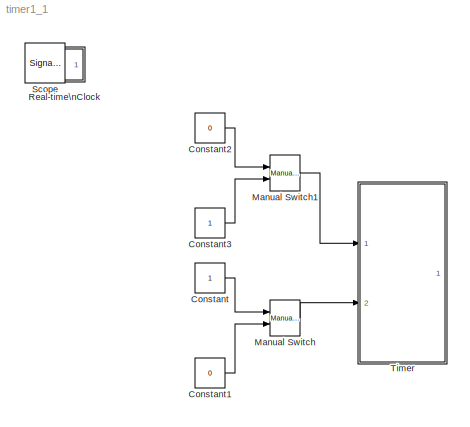
MODEL timer1_1
KIND model
BLOCK [Constant] Constant
  SID = 128
BLOCK [Constant] Constant1
  SID = 129
  Value = 0
BLOCK [Constant] Constant2
  SID = 132
  Value = 0
BLOCK [Constant] Constant3
  SID = 133
BLOCK [Reference] Manual Switch  REF=simulink/Signal\nRouting/Manual Switch
  FunctionWithSeparateData = off
  GeneratePreprocessorConditionals = off
  Ports = [2, 1]
  RTWMemSecDataConstants = Inherit from model
  RTWMemSecDataInternal = Inherit from model
  RTWMemSecDataParameters = Inherit from model
  RTWMemSecFuncExecute = Inherit from model
  RTWMemSecFuncInitTerm = Inherit from model
  SID = 130
  ShowPortLabels = FromPortIcon
  SourceBlock = simulink/Signal\nRouting/Manual Switch
  SourceType = Manual Switch
  SystemSampleTime = -1
  action = 0
  sw = 1
  varsize = off
BLOCK [Reference] Manual Switch1  REF=simulink/Signal\nRouting/Manual Switch
  FunctionWithSeparateData = off
  GeneratePreprocessorConditionals = off
  Ports = [2, 1]
  RTWMemSecDataConstants = Inherit from model
  RTWMemSecDataInternal = Inherit from model
  RTWMemSecDataParameters = Inherit from model
  RTWMemSecFuncExecute = Inherit from model
  RTWMemSecFuncInitTerm = Inherit from model
  SID = 134
  ShowPortLabels = FromPortIcon
  SourceBlock = simulink/Signal\nRouting/Manual Switch
  SourceType = Manual Switch
  SystemSampleTime = -1
  action = 0
  sw = 1
  varsize = off
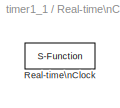
BLOCK [SubSystem] Real-time\nClock
  FunctionWithSeparateData = off
  MaskCallbackString = |
  MaskDescription = Real-time Synchronization Block
  MaskDisplay = plot(0,0,100,100,[40,60,60,54,54,64,69,76,82,77,81,83,83,81,78,74,70,64,57,49,41,35,32,30,30,31,34,40,47,47,40,40],[90,90,85,85,80,79,76,87,80,70,64,57,49,41,33,28,24,22,21,23,25,31,37,46,56,65,73,78,80,85,85,90],[69,53,53],[64,50,73])
  MaskEnableString = on,on
  MaskHelp = This block synchronizes simulation time with the PC real-time clock or UNIX system clock. The first dialog entry is the period at which the clock is checked to insure real-time synchronization. The second dialog entry is the number of seconds that the simulation time must be within real-time before a warning is printed.
  MaskHideContents = off
  MaskIconFrame = on
  MaskIconOpaque = on
  MaskIconRotate = none
  MaskIconUnits = autoscale
  MaskPortRotate = default
  MaskPromptString = Synchronize with real-time every n seconds:|Real-time warning tolerance (seconds):
  MaskStyleString = edit,edit
  MaskToolTipString = on,on
  MaskTunableValueString = on,on
  MaskType = Real-time Clock
  MaskValueString = 0.02|1
  MaskVariables = sample_time=@1;tolerance=@2;
  MaskVisibilityString = on,on
  MinAlgLoopOccurrences = off
  Opaque = off
  Ports = []
  PropExecContextOutsideSubsystem = off
  RTWSystemCode = Auto
  RequestExecContextInheritance = off
  SID = 30
  ShowPortLabels = none
BLOCK [S-Function] Real-time\nClock/Real-time\nClock
  EnableBusSupport = off
  FunctionName = rtclock
  Parameters = sample_time, tolerance
  Ports = []
  SID = 31
BLOCK [SignalViewerScope] Scope
  DataFormat = Array
  IOType = viewer
  MaxDataPoints = 7500
  NumInputPorts = 1
  Ports = []
  RefreshTime = 0.035000
  SID = 154
  ShowDataMarkers = off
  ShowLegends = off
  YMax = 60
  YMin = 0
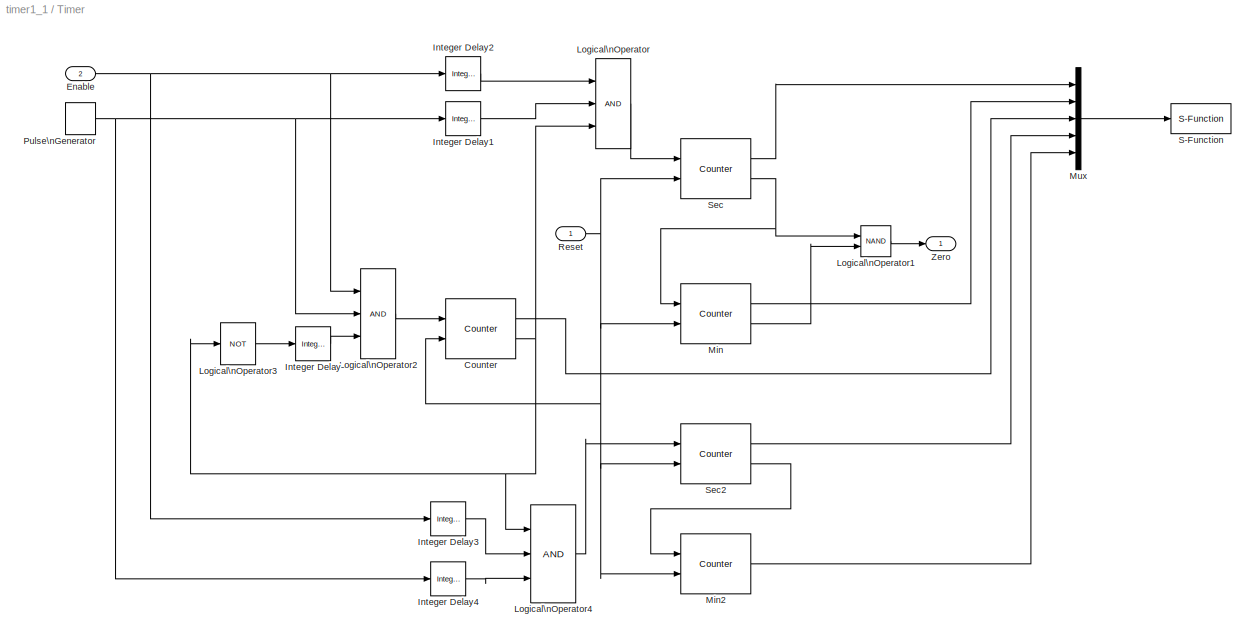
BLOCK [SubSystem] Timer
  FunctionWithSeparateData = off
  MaskHideContents = off
  MinAlgLoopOccurrences = off
  Opaque = off
  Ports = [2, 1]
  PropExecContextOutsideSubsystem = off
  RTWSystemCode = Auto
  RequestExecContextInheritance = off
  SID = 108
BLOCK [Reference] Timer/Counter  REF=dspswit3/Counter
  CntDtype = double
  CountEvent = Rising edge
  CounterSize = User defined
  Direction = Down
  HitDtype = Boolean
  HitValue = 0
  InitialCount = 4
  MaxCount = 4
  Output = Count and Hit
  Ports = [2, 2]
  ResetInput = on
  SID = 184
  SamplesPerFrame = 1
  SourceBlock = dspswit3/Counter
  SourceType = Counter
  Ts = 1
BLOCK [Inport] Timer/Enable
  IconDisplay = Port number
  Port = 2
  SID = 118
BLOCK [Reference] Timer/Integer Delay  REF=simulink/Discrete/Integer Delay
  InputProcessing = Elements as channels (sample based)
  NumDelays = 1
  Ports = [1, 1]
  SID = 200
  SourceBlock = simulink/Discrete/Integer Delay
  SourceType = Integer Delay
  UserData = DataTag0
  UserDataPersistent = on
  samptime = -1
  vinit = 0.0
BLOCK [Reference] Timer/Integer Delay1  REF=simulink/Discrete/Integer Delay
  InputProcessing = Elements as channels (sample based)
  NumDelays = 1
  Ports = [1, 1]
  SID = 201
  SourceBlock = simulink/Discrete/Integer Delay
  SourceType = Integer Delay
  UserData = DataTag1
  UserDataPersistent = on
  samptime = -1
  vinit = 0.0
BLOCK [Reference] Timer/Integer Delay2  REF=simulink/Discrete/Integer Delay
  InputProcessing = Elements as channels (sample based)
  NumDelays = 1
  Ports = [1, 1]
  SID = 202
  SourceBlock = simulink/Discrete/Integer Delay
  SourceType = Integer Delay
  UserData = DataTag2
  UserDataPersistent = on
  samptime = -1
  vinit = 0.0
BLOCK [Reference] Timer/Integer Delay3  REF=simulink/Discrete/Integer Delay
  InputProcessing = Elements as channels (sample based)
  NumDelays = 1
  Ports = [1, 1]
  SID = 217
  SourceBlock = simulink/Discrete/Integer Delay
  SourceType = Integer Delay
  UserData = DataTag3
  UserDataPersistent = on
  samptime = -1
  vinit = 0.0
BLOCK [Reference] Timer/Integer Delay4  REF=simulink/Discrete/Integer Delay
  InputProcessing = Elements as channels (sample based)
  NumDelays = 1
  Ports = [1, 1]
  SID = 218
  SourceBlock = simulink/Discrete/Integer Delay
  SourceType = Integer Delay
  UserData = DataTag4
  UserDataPersistent = on
  samptime = -1
  vinit = 0.0
BLOCK [Logic] Timer/Logical\nOperator
  AllPortsSameDT = off
  Inputs = 3
  OutDataTypeStr = boolean
  Ports = [3, 1]
  SID = 119
BLOCK [Logic] Timer/Logical\nOperator1
  AllPortsSameDT = off
  Operator = NAND
  OutDataTypeStr = boolean
  Ports = [2, 1]
  SID = 40
BLOCK [Logic] Timer/Logical\nOperator2
  AllPortsSameDT = off
  Inputs = 3
  OutDataTypeStr = boolean
  Ports = [3, 1]
  SID = 198
BLOCK [Logic] Timer/Logical\nOperator3
  AllPortsSameDT = off
  Inputs = 1
  Operator = NOT
  OutDataTypeStr = boolean
  Ports = [1, 1]
  SID = 199
BLOCK [Logic] Timer/Logical\nOperator4
  AllPortsSameDT = off
  Inputs = 3
  OutDataTypeStr = boolean
  Ports = [3, 1]
  SID = 213
BLOCK [Reference] Timer/Min  REF=dspswit3/Counter
  CntDtype = double
  CountEvent = Rising edge
  CounterSize = User defined
  Direction = Down
  HitDtype = Logical
  HitValue = 0
  InitialCount = 1
  MaxCount = 59
  Output = Count and Hit
  Ports = [2, 2]
  ResetInput = on
  SID = 33
  SamplesPerFrame = 1
  SourceBlock = dspswit3/Counter
  SourceType = Counter
  Ts = 1
BLOCK [Reference] Timer/Min2  REF=dspswit3/Counter
  CntDtype = double
  CountEvent = Rising edge
  CounterSize = User defined
  Direction = Up
  HitDtype = Logical
  HitValue = 0
  InitialCount = 0
  MaxCount = 59
  Output = Count
  Ports = [2, 1]
  ResetInput = on
  SID = 211
  SamplesPerFrame = 1
  SourceBlock = dspswit3/Counter
  SourceType = Counter
  Ts = 1
BLOCK [Mux] Timer/Mux
  DisplayOption = bar
  Inputs = 5
  Ports = [5, 1]
  SID = 182
BLOCK [DiscretePulseGenerator] Timer/Pulse\nGenerator
  Period = 4
  Ports = [0, 1]
  SID = 180
  SampleTime = 0.25
BLOCK [Inport] Timer/Reset
  IconDisplay = Port number
  SID = 117
BLOCK [S-Function] Timer/S-Function
  EnableBusSupport = off
  FunctionName = opgui_sf
  Parameters = 0.25
  Ports = [1]
  SID = 181
BLOCK [Reference] Timer/Sec  REF=dspswit3/Counter
  CntDtype = double
  CountEvent = Rising edge
  CounterSize = User defined
  Direction = Down
  HitDtype = Logical
  HitValue = 0
  InitialCount = 11
  MaxCount = 59
  Output = Count and Hit
  Ports = [2, 2]
  ResetInput = on
  SID = 62
  SamplesPerFrame = 1
  SourceBlock = dspswit3/Counter
  SourceType = Counter
  Ts = 1
BLOCK [Reference] Timer/Sec2  REF=dspswit3/Counter
  CntDtype = double
  CountEvent = Rising edge
  CounterSize = User defined
  Direction = Up
  HitDtype = Logical
  HitValue = 0
  InitialCount = 0
  MaxCount = 59
  Output = Count and Hit
  Ports = [2, 2]
  ResetInput = on
  SID = 212
  SamplesPerFrame = 1
  SourceBlock = dspswit3/Counter
  SourceType = Counter
  Ts = 1
BLOCK [Outport] Timer/Zero
  IconDisplay = Port number
  SID = 124
LINE Constant1:1 -> Manual Switch:2
LINE Constant2:1 -> Manual Switch1:1
LINE Constant3:1 -> Manual Switch1:2
LINE Constant:1 -> Manual Switch:1
LINE Manual Switch1:1 -> Timer:1
LINE Manual Switch:1 -> Timer:2
LINE Timer/Counter:1 -> Timer/Mux:3
NET Timer/Counter:2 -> Timer/Logical\nOperator3:1, Timer/Logical\nOperator4:1, Timer/Logical\nOperator:3
NET Timer/Enable:1 -> Timer/Integer Delay2:1, Timer/Integer Delay3:1, Timer/Logical\nOperator2:1
LINE Timer/Integer Delay1:1 -> Timer/Logical\nOperator:2
LINE Timer/Integer Delay2:1 -> Timer/Logical\nOperator:1
LINE Timer/Integer Delay3:1 -> Timer/Logical\nOperator4:2
LINE Timer/Integer Delay4:1 -> Timer/Logical\nOperator4:3
LINE Timer/Integer Delay:1 -> Timer/Logical\nOperator2:3
LINE Timer/Logical\nOperator1:1 -> Timer/Zero:1
LINE Timer/Logical\nOperator2:1 -> Timer/Counter:1
LINE Timer/Logical\nOperator3:1 -> Timer/Integer Delay:1
LINE Timer/Logical\nOperator4:1 -> Timer/Sec2:1
LINE Timer/Logical\nOperator:1 -> Timer/Sec:1
LINE Timer/Min2:1 -> Timer/Mux:5
LINE Timer/Min:1 -> Timer/Mux:2
LINE Timer/Min:2 -> Timer/Logical\nOperator1:2
LINE Timer/Mux:1 -> Timer/S-Function:1
NET Timer/Pulse\nGenerator:1 -> Timer/Integer Delay1:1, Timer/Integer Delay4:1, Timer/Logical\nOperator2:2
NET Timer/Reset:1 -> Timer/Counter:2, Timer/Min2:2, Timer/Min:2, Timer/Sec2:2, Timer/Sec:2
LINE Timer/Sec2:1 -> Timer/Mux:4
LINE Timer/Sec2:2 -> Timer/Min2:1
LINE Timer/Sec:1 -> Timer/Mux:1
NET Timer/Sec:2 -> Timer/Logical\nOperator1:1, Timer/Min:1
note: NET lines group one-source signal fan-out (src -> all destinations, sorted); 1:1 wires keep LINE
